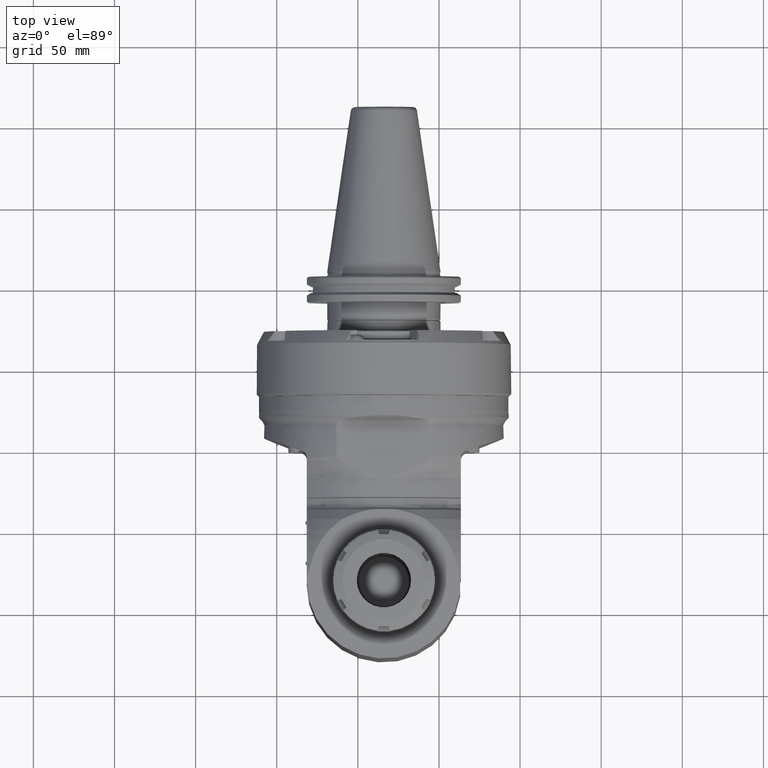
[diagram: clean part render]
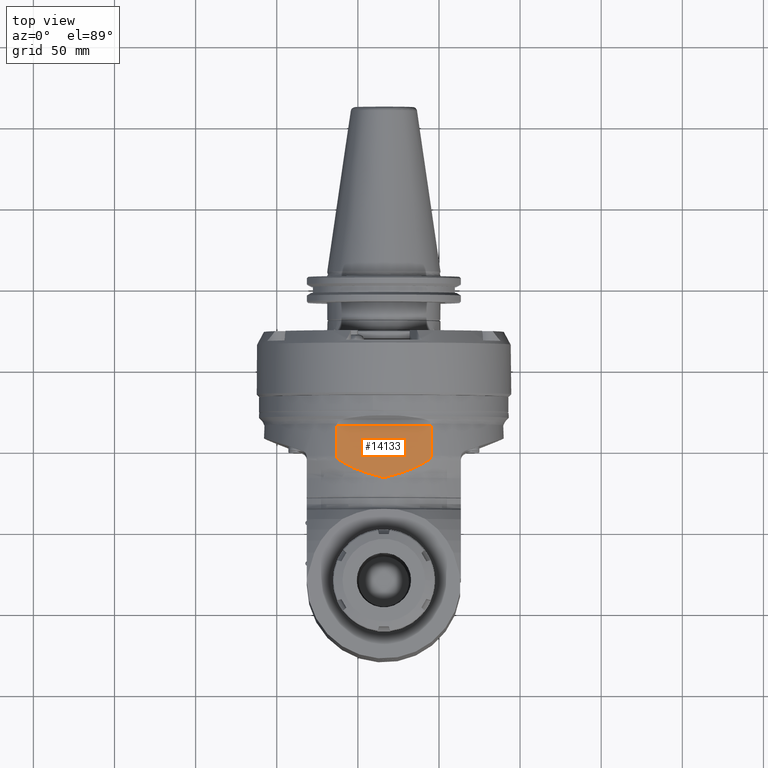
[diagram: same view with one face highlighted and labeled with its STEP entity id]
A machine part, top view. The second image highlights one B-rep face of the part: STEP entity #14133.
In plain terms, the highlighted planar face has unit normal (-0, 0, -1).
Its self-contained STEP definition (entity closure, byte-faithful):
#56=(
BOUNDED_CURVE()
B_SPLINE_CURVE(2,(#21494,#21495,#21496),.UNSPECIFIED.,.F.,.F.)
B_SPLINE_CURVE_WITH_KNOTS((3,3),(7.54967393966118,9.61747213922365),
 .UNSPECIFIED.)
CURVE()
GEOMETRIC_REPRESENTATION_ITEM()
RATIONAL_B_SPLINE_CURVE((1.1274488923326,1.11743562831684,1.09237641232533))
REPRESENTATION_ITEM('')
);
#57=(
BOUNDED_CURVE()
B_SPLINE_CURVE(2,(#21538,#21539,#21540),.UNSPECIFIED.,.F.,.F.)
B_SPLINE_CURVE_WITH_KNOTS((3,3),(2.72958604297697,4.79738424248402),
 .UNSPECIFIED.)
CURVE()
GEOMETRIC_REPRESENTATION_ITEM()
RATIONAL_B_SPLINE_CURVE((1.0923764123267,1.11743562831713,1.12744889233261))
REPRESENTATION_ITEM('')
);
#450=B_SPLINE_CURVE_WITH_KNOTS('',3,(#21498,#21499,#21500,#21501,#21502,
#21503,#21504,#21505,#21506,#21507,#21508,#21509,#21510,#21511,#21512,#21513,
#21514,#21515,#21516),.UNSPECIFIED.,.F.,.F.,(4,3,3,3,3,3,4),(0.,0.202487017837555,
0.3333333333333,0.530586412468263,0.6666666666667,0.850305652155206,0.999999999999952),
 .UNSPECIFIED.);
#451=B_SPLINE_CURVE_WITH_KNOTS('',3,(#21518,#21519,#21520,#21521,#21522,
#21523,#21524,#21525,#21526,#21527,#21528,#21529,#21530,#21531,#21532,#21533,
#21534,#21535,#21536),.UNSPECIFIED.,.F.,.F.,(4,3,3,3,3,3,4),(0.,0.183639299142875,
0.3333333333333,0.530586775084787,0.6666666666667,0.869153841131192,1.),
 .UNSPECIFIED.);
#452=B_SPLINE_CURVE_WITH_KNOTS('',3,(#21542,#21543,#21544,#21545,#21546,
#21547,#21548,#21549),.UNSPECIFIED.,.F.,.F.,(4,2,2,4),(8.91452353324013,
9.00491616578846,9.11853852716328,9.27826446866528),.UNSPECIFIED.);
#453=B_SPLINE_CURVE_WITH_KNOTS('',3,(#21551,#21552,#21553,#21554,#21555,
#21556,#21557,#21558),.UNSPECIFIED.,.F.,.F.,(4,2,2,4),(2.60776690898444,
2.76749285049022,2.88111521186505,2.97150784441338),.UNSPECIFIED.);
#707=LINE('',#21390,#1678);
#709=LINE('',#21454,#1680);
#711=LINE('',#21550,#1682);
#1678=VECTOR('',#16860,58.37807807731);
#1680=VECTOR('',#16886,18.59147469257);
#1682=VECTOR('',#16896,18.59147469257);
#2994=FACE_OUTER_BOUND('',#3876,.T.);
#3876=EDGE_LOOP('',(#9370,#9371,#9372,#9373,#9374,#9375,#9376,#9377,#9378));
#5690=VERTEX_POINT('',#21380);
#5691=VERTEX_POINT('',#21389);
#5699=VERTEX_POINT('',#21453);
#5706=VERTEX_POINT('',#21492);
#5707=VERTEX_POINT('',#21493);
#5708=VERTEX_POINT('',#21497);
#5709=VERTEX_POINT('',#21517);
#5710=VERTEX_POINT('',#21537);
#5711=VERTEX_POINT('',#21541);
#7109=EDGE_CURVE('',#5690,#5691,#707,.T.);
#7123=EDGE_CURVE('',#5699,#5690,#709,.T.);
#7131=EDGE_CURVE('',#5706,#5707,#56,.T.);
#7132=EDGE_CURVE('',#5706,#5708,#450,.T.);
#7133=EDGE_CURVE('',#5708,#5709,#451,.T.);
#7134=EDGE_CURVE('',#5710,#5709,#57,.T.);
#7135=EDGE_CURVE('',#5711,#5710,#452,.T.);
#7136=EDGE_CURVE('',#5691,#5711,#711,.T.);
#7137=EDGE_CURVE('',#5707,#5699,#453,.T.);
#9370=ORIENTED_EDGE('',*,*,#7131,.F.);
#9371=ORIENTED_EDGE('',*,*,#7132,.T.);
#9372=ORIENTED_EDGE('',*,*,#7133,.T.);
#9373=ORIENTED_EDGE('',*,*,#7134,.F.);
#9374=ORIENTED_EDGE('',*,*,#7135,.F.);
#9375=ORIENTED_EDGE('',*,*,#7136,.F.);
#9376=ORIENTED_EDGE('',*,*,#7109,.F.);
#9377=ORIENTED_EDGE('',*,*,#7123,.F.);
#9378=ORIENTED_EDGE('',*,*,#7137,.F.);
#13748=PLANE('',#15090);
#14133=ADVANCED_FACE('',(#2994),#13748,.F.);
#15090=AXIS2_PLACEMENT_3D('',#21491,#16894,#16895);
#16860=DIRECTION('',(8.406631426876E-14,-1.144111271923E-14,1.));
#16886=DIRECTION('',(-1.,0.,0.));
#16894=DIRECTION('center_axis',(0.,1.,1.152231463419E-14));
#16895=DIRECTION('ref_axis',(-1.,0.,0.));
#16896=DIRECTION('',(1.,0.,2.675311793479E-14));
#21380=CARTESIAN_POINT('',(-3.199169847162,-68.,-29.18903903865));
#21389=CARTESIAN_POINT('',(-3.199169847157,-68.,29.18903903865));
#21390=CARTESIAN_POINT('',(-3.199169847162,-68.,-29.18903903865));
#21453=CARTESIAN_POINT('',(15.39230484541,-68.,-29.18903903865));
#21454=CARTESIAN_POINT('',(15.39230484541,-68.,-29.18903903865));
#21491=CARTESIAN_POINT('Origin',(34.42343598688,-68.,92.4000024));
#21492=CARTESIAN_POINT('',(26.,-68.,-10.4866315583));
#21493=CARTESIAN_POINT('',(18.39230484541,-68.00000000001,-27.08646764506));
#21494=CARTESIAN_POINT('Ctrl Pts',(26.0000000000037,-67.9999999999988,-10.486631558301));
#21495=CARTESIAN_POINT('Ctrl Pts',(23.8766964187778,-67.9999999999987,-18.529818825596));
#21496=CARTESIAN_POINT('Ctrl Pts',(18.3923048450984,-67.9999999999986,-27.0864676455824));
#21497=CARTESIAN_POINT('',(29.,-68.,-5.832530929955E-13));
#21498=CARTESIAN_POINT('Ctrl Pts',(25.9999999999996,-67.9999999999994,-10.4866315582999));
#21499=CARTESIAN_POINT('Ctrl Pts',(26.1829147413714,-68.0000000000006,-9.79374075746131));
#21500=CARTESIAN_POINT('Ctrl Pts',(26.3711329033481,-67.9999995615002,-9.09818051632745));
#21501=CARTESIAN_POINT('Ctrl Pts',(26.5638505421873,-67.9999990571476,-8.39975234408616));
#21502=CARTESIAN_POINT('Ctrl Pts',(26.6883839233514,-67.9999987312369,-7.94843080282313));
#21503=CARTESIAN_POINT('Ctrl Pts',(26.8147965055006,-67.999998323314,-7.49591062664137));
#21504=CARTESIAN_POINT('Ctrl Pts',(26.9428721891814,-67.9999978944363,-7.0421267676759));
#21505=CARTESIAN_POINT('Ctrl Pts',(27.1359484930318,-67.9999972478958,-6.35803976756773));
#21506=CARTESIAN_POINT('Ctrl Pts',(27.3328002450435,-67.9999981478949,-5.67108328049722));
#21507=CARTESIAN_POINT('Ctrl Pts',(27.5326636877927,-67.9999984614069,-4.98107559734156));
#21508=CARTESIAN_POINT('Ctrl Pts',(27.6705447703774,-67.9999986776915,-4.50505554566748));
#21509=CARTESIAN_POINT('Ctrl Pts',(27.8098589907631,-67.9999987534192,-4.02758237057189));
#21510=CARTESIAN_POINT('Ctrl Pts',(27.9503484328585,-67.9999989111256,-3.5485837387808));
#21511=CARTESIAN_POINT('Ctrl Pts',(28.1399375747233,-67.9999991239488,-2.90217972292537));
#21512=CARTESIAN_POINT('Ctrl Pts',(28.3316639346324,-67.9999998846128,-2.25299930929118));
#21513=CARTESIAN_POINT('Ctrl Pts',(28.5248831356162,-67.9999999935096,-1.60084999286757));
#21514=CARTESIAN_POINT('Ctrl Pts',(28.6823868497945,-68.0000000822773,-1.0692468239667));
#21515=CARTESIAN_POINT('Ctrl Pts',(28.8408822234773,-68.,-0.535670256589292));
#21516=CARTESIAN_POINT('Ctrl Pts',(28.9999999999998,-68.,-5.51892791090679E-13));
#21517=CARTESIAN_POINT('',(26.,-68.,10.48663155829));
#21518=CARTESIAN_POINT('Ctrl Pts',(29.,-68.,8.327598234202E-15));
#21519=CARTESIAN_POINT('Ctrl Pts',(28.8048004285264,-68.,0.657139678694229));
#21520=CARTESIAN_POINT('Ctrl Pts',(28.6105388106138,-68.000000136204,1.31112939497074));
#21521=CARTESIAN_POINT('Ctrl Pts',(28.4178926460485,-67.9999998986619,1.96218823861783));
#21522=CARTESIAN_POINT('Ctrl Pts',(28.2608566429724,-67.9999997050289,2.49290048406732));
#21523=CARTESIAN_POINT('Ctrl Pts',(28.1048928583356,-67.9999990846131,3.02166465454157));
#21524=CARTESIAN_POINT('Ctrl Pts',(27.9503485385419,-67.9999989111308,3.54858337835649));
#21525=CARTESIAN_POINT('Ctrl Pts',(27.7467038231909,-67.9999986825313,4.242909858085));
#21526=CARTESIAN_POINT('Ctrl Pts',(27.5455297530547,-67.9999985249095,4.93403311424301));
#21527=CARTESIAN_POINT('Ctrl Pts',(27.3476071505995,-67.9999981160921,5.6221664138169));
#21528=CARTESIAN_POINT('Ctrl Pts',(27.2110656228848,-67.9999978340599,6.09689123467906));
#21529=CARTESIAN_POINT('Ctrl Pts',(27.0760707391389,-67.9999974484145,6.57019212748857));
#21530=CARTESIAN_POINT('Ctrl Pts',(26.9428722911824,-67.9999978944456,7.04212640618417));
#21531=CARTESIAN_POINT('Ctrl Pts',(26.7446727110958,-67.999998558141,7.74436563870508));
#21532=CARTESIAN_POINT('Ctrl Pts',(26.5504559859744,-67.9999991412659,8.44358109690969));
#21533=CARTESIAN_POINT('Ctrl Pts',(26.3610228156471,-67.999999531484,9.14000477472891));
#21534=CARTESIAN_POINT('Ctrl Pts',(26.2386120863492,-67.9999997836409,9.59003013277406));
#21535=CARTESIAN_POINT('Ctrl Pts',(26.1181986646597,-67.9999999999998,10.0388887093652));
#21536=CARTESIAN_POINT('Ctrl Pts',(26.0000000000003,-68.0000000000005,10.4866315582901));
#21537=CARTESIAN_POINT('',(18.3923048454,-68.,27.0864676451));
#21538=CARTESIAN_POINT('Ctrl Pts',(18.3923048454047,-67.9999999999993,27.086467645103));
#21539=CARTESIAN_POINT('Ctrl Pts',(23.876696418839,-67.9999999999992,18.5298188253687));
#21540=CARTESIAN_POINT('Ctrl Pts',(26.0000000000058,-67.9999999999991,10.4866315582915));
#21541=CARTESIAN_POINT('',(15.39230484541,-68.,29.18903903865));
#21542=CARTESIAN_POINT('Ctrl Pts',(15.39230484541,-67.9999999999993,29.1890390386545));
#21543=CARTESIAN_POINT('Ctrl Pts',(15.6936136205711,-67.9999999999993,29.1890390386545));
#21544=CARTESIAN_POINT('Ctrl Pts',(16.0475593420316,-67.9999999999993,29.1151765003549));
#21545=CARTESIAN_POINT('Ctrl Pts',(16.6785244034473,-67.9999999999993,28.8615013809161));
#21546=CARTESIAN_POINT('Ctrl Pts',(17.0559467954404,-67.9999999999993,28.6082959424032));
#21547=CARTESIAN_POINT('Ctrl Pts',(17.7362260465552,-67.9999999999993,28.0021321642882));
#21548=CARTESIAN_POINT('Ctrl Pts',(18.0854301486741,-67.9999999999993,27.565248012325));
#21549=CARTESIAN_POINT('Ctrl Pts',(18.3923048454,-67.9999999999992,27.0864676451));
#21550=CARTESIAN_POINT('',(-3.199169847157,-68.,29.18903903865));
#21551=CARTESIAN_POINT('Ctrl Pts',(18.3923048454218,-67.9999999999986,-27.0864676450676));
#21552=CARTESIAN_POINT('Ctrl Pts',(18.0854301486907,-67.9999999999986,-27.5652480123059));
#21553=CARTESIAN_POINT('Ctrl Pts',(17.7362260465646,-67.9999999999986,-28.0021321642813));
#21554=CARTESIAN_POINT('Ctrl Pts',(17.0559467954404,-67.9999999999986,-28.6082959424047));
#21555=CARTESIAN_POINT('Ctrl Pts',(16.6785244034473,-67.9999999999986,-28.8615013809176));
#21556=CARTESIAN_POINT('Ctrl Pts',(16.0475593420316,-67.9999999999986,-29.1151765003564));
#21557=CARTESIAN_POINT('Ctrl Pts',(15.6936136205711,-67.9999999999986,-29.1890390386561));
#21558=CARTESIAN_POINT('Ctrl Pts',(15.39230484541,-67.9999999999986,-29.1890390386561));